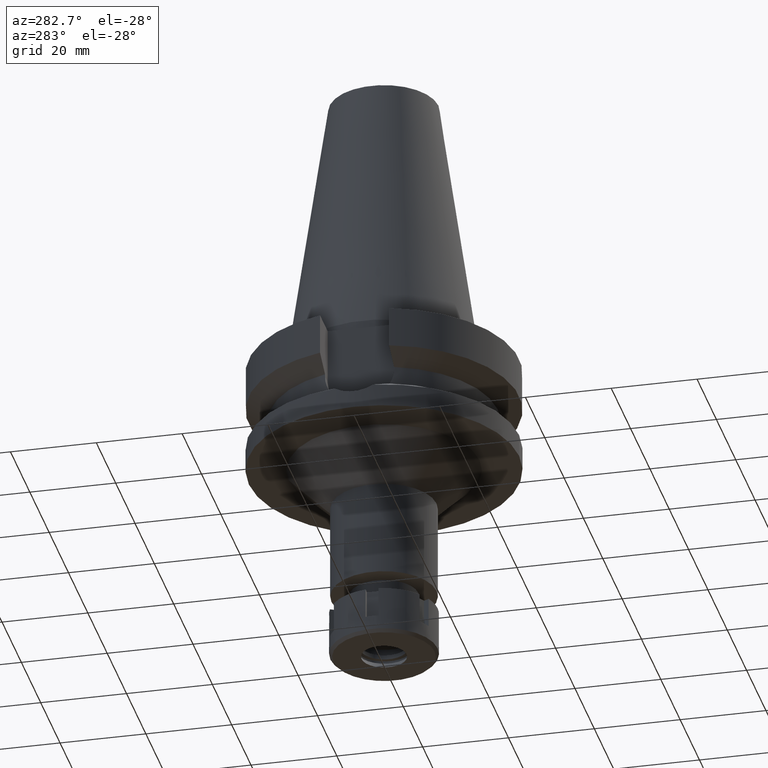
[diagram: clean part render]
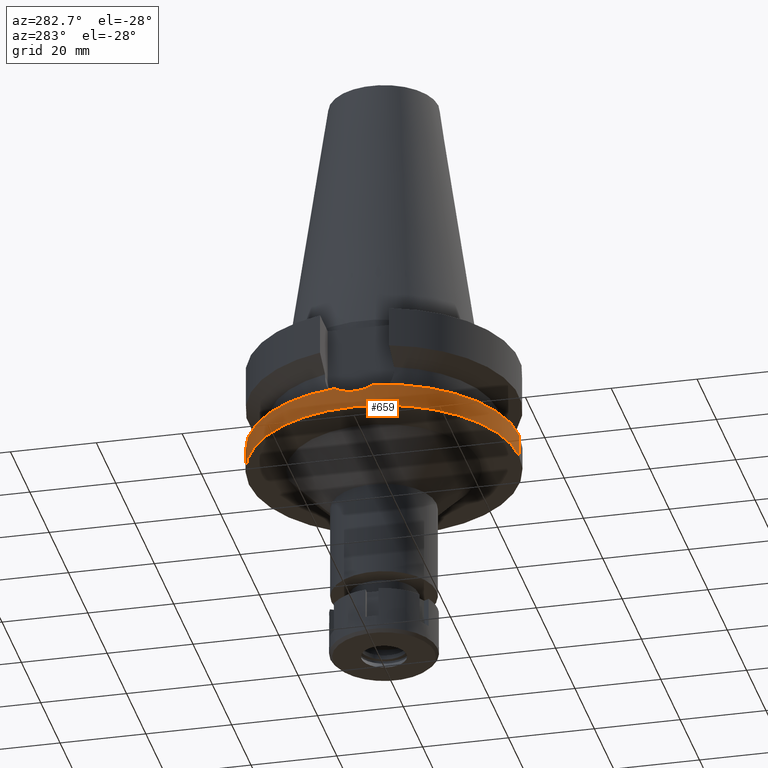
[diagram: same view with one face highlighted and labeled with its STEP entity id]
A machine part, auxiliary view. The second image highlights one B-rep face of the part: STEP entity #659.
In plain terms, the highlighted cylindrical surface (partial cylindrical patch) has radius 31.5 mm, axis along (0, 0, -1).
Its self-contained STEP definition (entity closure, byte-faithful):
#2 = CARTESIAN_POINT ( 'NONE',  ( -31.17899877608999759, -4.485536235554000051, -21.63449434733000132 ) ) ;
#47 = ORIENTED_EDGE ( 'NONE', *, *, #453, .F. ) ;
#126 = CARTESIAN_POINT ( 'NONE',  ( -31.36267722272214442, -3.014176567367302439, -22.44730567393052922 ) ) ;
#141 = CARTESIAN_POINT ( 'NONE',  ( -31.43649054899053752, -2.003082981850726529, -22.74794518897533990 ) ) ;
#248 = DIRECTION ( 'NONE',  ( 0.0000000000000000000, 1.000000000000000000, 0.0000000000000000000 ) ) ;
#381 = CARTESIAN_POINT ( 'NONE',  ( 0.0000000000000000000, -31.50000000000000000, -21.63449434733000132 ) ) ;
#431 = VERTEX_POINT ( 'NONE', #647 ) ;
#444 = CARTESIAN_POINT ( 'NONE',  ( -31.35488044589910928, 3.022543741491381830, -22.41338040345452498 ) ) ;
#453 = EDGE_CURVE ( 'NONE', #1965, #431, #2613, .T. ) ;
#509 = CARTESIAN_POINT ( 'NONE',  ( -31.42499671940192485, -2.173479871762401316, -22.70131995673040493 ) ) ;
#511 = CIRCLE ( 'NONE', #3154, 31.50000000000000000 ) ;
#540 = DIRECTION ( 'NONE',  ( 0.0000000000000000000, 0.0000000000000000000, -1.000000000000000000 ) ) ;
#647 = CARTESIAN_POINT ( 'NONE',  ( 0.0000000000000000000, -31.50000000000000000, -27.00000000000000000 ) ) ;
#659 = ADVANCED_FACE ( 'NONE', ( #3220 ), #2399, .T. ) ;
#688 = CARTESIAN_POINT ( 'NONE',  ( -31.40736225802093884, 2.414206324129735126, -22.62949227793255247 ) ) ;
#706 = DIRECTION ( 'NONE',  ( 0.0000000000000000000, -1.000000000000000000, 0.0000000000000000000 ) ) ;
#775 = DIRECTION ( 'NONE',  ( 0.0000000000000000000, 0.0000000000000000000, -1.000000000000000000 ) ) ;
#787 = VERTEX_POINT ( 'NONE', #2793 ) ;
#834 = VERTEX_POINT ( 'NONE', #2 ) ;
#899 = CARTESIAN_POINT ( 'NONE',  ( 0.0000000000000000000, 2.107862070691999752E-14, -27.00000000000000000 ) ) ;
#931 = VECTOR ( 'NONE', #2722, 1000.000000000000000 ) ;
#934 = AXIS2_PLACEMENT_3D ( 'NONE', #899, #1976, #248 ) ;
#1072 = DIRECTION ( 'NONE',  ( 0.0000000000000000000, -1.000000000000000000, 0.0000000000000000000 ) ) ;
#1280 = CARTESIAN_POINT ( 'NONE',  ( -31.41895388234276609, -2.258557297385252571, -22.67674196858914470 ) ) ;
#1375 = CARTESIAN_POINT ( 'NONE',  ( 0.0000000000000000000, 31.50000000000000000, -21.63449434733000132 ) ) ;
#1384 = ORIENTED_EDGE ( 'NONE', *, *, #1906, .T. ) ;
#1392 = EDGE_LOOP ( 'NONE', ( #2878, #2659, #1709, #47, #1384, #3124 ) ) ;
#1430 = CARTESIAN_POINT ( 'NONE',  ( 0.0000000000000000000, -31.50000000000000000, -21.63449434733000132 ) ) ;
#1598 = CARTESIAN_POINT ( 'NONE',  ( 0.0000000000000000000, 2.107862070691999752E-14, 72.12000000000000455 ) ) ;
#1647 = CARTESIAN_POINT ( 'NONE',  ( -31.40242035841608725, 2.478036592965362050, -22.60933024856946361 ) ) ;
#1658 = CARTESIAN_POINT ( 'NONE',  ( 0.0000000000000000000, 0.0000000000000000000, -21.63449434733000132 ) ) ;
#1709 = ORIENTED_EDGE ( 'NONE', *, *, #2453, .T. ) ;
#1738 = EDGE_CURVE ( 'NONE', #3359, #3182, #2925, .T. ) ;
#1816 = CARTESIAN_POINT ( 'NONE',  ( -31.49988075799867815, -0.3932938145163106802, -22.99952906081513504 ) ) ;
#1871 = EDGE_CURVE ( 'NONE', #3182, #787, #2992, .T. ) ;
#1873 = CARTESIAN_POINT ( 'NONE',  ( -31.23221634381112111, 4.115620490450889513, -21.88272112299441474 ) ) ;
#1906 = EDGE_CURVE ( 'NONE', #1965, #834, #511, .T. ) ;
#1943 = CARTESIAN_POINT ( 'NONE',  ( -31.49254817246029958, -0.7824343147830866707, -22.97160126998601015 ) ) ;
#1965 = VERTEX_POINT ( 'NONE', #1430 ) ;
#1976 = DIRECTION ( 'NONE',  ( 0.0000000000000000000, 0.0000000000000000000, 1.000000000000000000 ) ) ;
#2136 = CARTESIAN_POINT ( 'NONE',  ( -31.41060181519639372, 2.371771208741383585, -22.64270402106302882 ) ) ;
#2279 = EDGE_CURVE ( 'NONE', #3359, #834, #2394, .T. ) ;
#2288 = DIRECTION ( 'NONE',  ( 0.0000000000000000000, -1.105773104655000034E-13, -1.000000000000000000 ) ) ;
#2386 = CARTESIAN_POINT ( 'NONE',  ( -31.41630068311783575, -2.294990303371204465, -22.66593676115297384 ) ) ;
#2394 = B_SPLINE_CURVE_WITH_KNOTS ( 'NONE', 3,
 ( #3029, #1873, #3247, #2488, #444, #3201, #3226, #1647, #688, #2136, #2762, #2678, #3483, #1816, #1943, #2405, #3027, #3322, #141, #509, #1280, #2386, #3046, #2933, #126, #2661, #2427 ),
 .UNSPECIFIED., .F., .F.,
 ( 4, 2, 2, 1, 1, 2, 2, 2, 2, 2, 1, 1, 1, 2, 2, 4 ),
 ( 0.0000000000000000000, 0.1249999999999954481, 0.1874999999999931721, 0.2187499999999920897, 0.2343749999999917566, 0.2421874999999918676, 0.2499999999999920064, 0.4999999999999982236, 0.6250000000000013323, 0.6875000000000026645, 0.7187500000000034417, 0.7343750000000036637, 0.7421875000000038858, 0.7460937500000036637, 0.7500000000000035527, 1.000000000000000000 ),
 .UNSPECIFIED. ) ;
#2399 = CYLINDRICAL_SURFACE ( 'NONE', #3213, 31.50000000000000000 ) ;
#2405 = CARTESIAN_POINT ( 'NONE',  ( -31.47072699418135144, -1.368170334980069569, -22.88533600626831088 ) ) ;
#2408 = CIRCLE ( 'NONE', #934, 31.50000000000000000 ) ;
#2427 = CARTESIAN_POINT ( 'NONE',  ( -31.17899877608999759, -4.485536235554000051, -21.63449434733000132 ) ) ;
#2453 = EDGE_CURVE ( 'NONE', #787, #431, #2408, .T. ) ;
#2488 = CARTESIAN_POINT ( 'NONE',  ( -31.33707847181839412, 3.201445231377681111, -22.33871180483745178 ) ) ;
#2592 = VECTOR ( 'NONE', #2288, 1000.000000000000000 ) ;
#2613 = LINE ( 'NONE', #381, #2592 ) ;
#2633 = AXIS2_PLACEMENT_3D ( 'NONE', #1658, #540, #2772 ) ;
#2659 = ORIENTED_EDGE ( 'NONE', *, *, #1871, .T. ) ;
#2661 = CARTESIAN_POINT ( 'NONE',  ( -31.28475554409355297, -3.750420082857382376, -22.12778373751422833 ) ) ;
#2678 = CARTESIAN_POINT ( 'NONE',  ( -31.47150441655144348, 1.550750680624010114, -22.89093377968033849 ) ) ;
#2722 = DIRECTION ( 'NONE',  ( 0.0000000000000000000, 1.099151708819000049E-13, -1.000000000000000000 ) ) ;
#2762 = CARTESIAN_POINT ( 'NONE',  ( -31.41200430603226934, 2.353176799729620683, -22.64842219027312709 ) ) ;
#2772 = DIRECTION ( 'NONE',  ( -0.9898094849552905306, 0.1423979757318985240, 0.0000000000000000000 ) ) ;
#2793 = CARTESIAN_POINT ( 'NONE',  ( 0.0000000000000000000, 31.50000000000000000, -27.00000000000000000 ) ) ;
#2878 = ORIENTED_EDGE ( 'NONE', *, *, #1738, .T. ) ;
#2925 = CIRCLE ( 'NONE', #2633, 31.50000000000001421 ) ;
#2933 = CARTESIAN_POINT ( 'NONE',  ( -31.41354641493283140, -2.332384000902695043, -22.65471317283391883 ) ) ;
#2992 = LINE ( 'NONE', #1375, #931 ) ;
#3008 = CARTESIAN_POINT ( 'NONE',  ( 0.0000000000000000000, 0.0000000000000000000, -21.63449434733000132 ) ) ;
#3027 = CARTESIAN_POINT ( 'NONE',  ( -31.46164955142647557, -1.563742733626729775, -22.84919402122361021 ) ) ;
#3029 = CARTESIAN_POINT ( 'NONE',  ( -31.17899877608999759, 4.485536235554000051, -21.63449434733000132 ) ) ;
#3046 = CARTESIAN_POINT ( 'NONE',  ( -31.41451779209810624, -2.319272271061279866, -22.65867282529008619 ) ) ;
#3124 = ORIENTED_EDGE ( 'NONE', *, *, #2279, .F. ) ;
#3154 = AXIS2_PLACEMENT_3D ( 'NONE', #3008, #775, #1072 ) ;
#3182 = VERTEX_POINT ( 'NONE', #3559 ) ;
#3201 = CARTESIAN_POINT ( 'NONE',  ( -31.37894136408621293, 2.758863631982643394, -22.51306821925453860 ) ) ;
#3213 = AXIS2_PLACEMENT_3D ( 'NONE', #1598, #3514, #706 ) ;
#3220 = FACE_OUTER_BOUND ( 'NONE', #1392, .T. ) ;
#3226 = CARTESIAN_POINT ( 'NONE',  ( -31.39031131244626138, 2.628187298589770737, -22.55983422582476550 ) ) ;
#3247 = CARTESIAN_POINT ( 'NONE',  ( -31.27838846370835313, 3.744638242329237254, -22.08718706858003245 ) ) ;
#3322 = CARTESIAN_POINT ( 'NONE',  ( -31.44532781230133267, -1.856703196132623246, -22.78359225527771414 ) ) ;
#3359 = VERTEX_POINT ( 'NONE', #3526 ) ;
#3483 = CARTESIAN_POINT ( 'NONE',  ( -31.50023391467116696, 0.7573065430306855639, -23.00092412718313284 ) ) ;
#3514 = DIRECTION ( 'NONE',  ( 0.0000000000000000000, 0.0000000000000000000, -1.000000000000000000 ) ) ;
#3526 = CARTESIAN_POINT ( 'NONE',  ( -31.17899877608999759, 4.485536235554000051, -21.63449434733000132 ) ) ;
#3559 = CARTESIAN_POINT ( 'NONE',  ( 0.0000000000000000000, 31.50000000000000000, -21.63449434733000132 ) ) ;